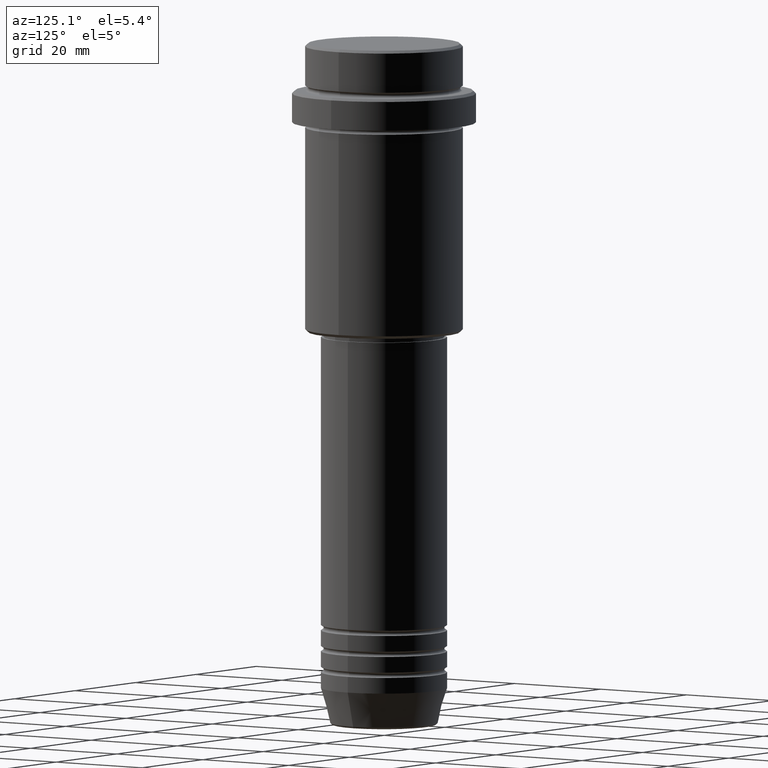
[diagram: clean part render]
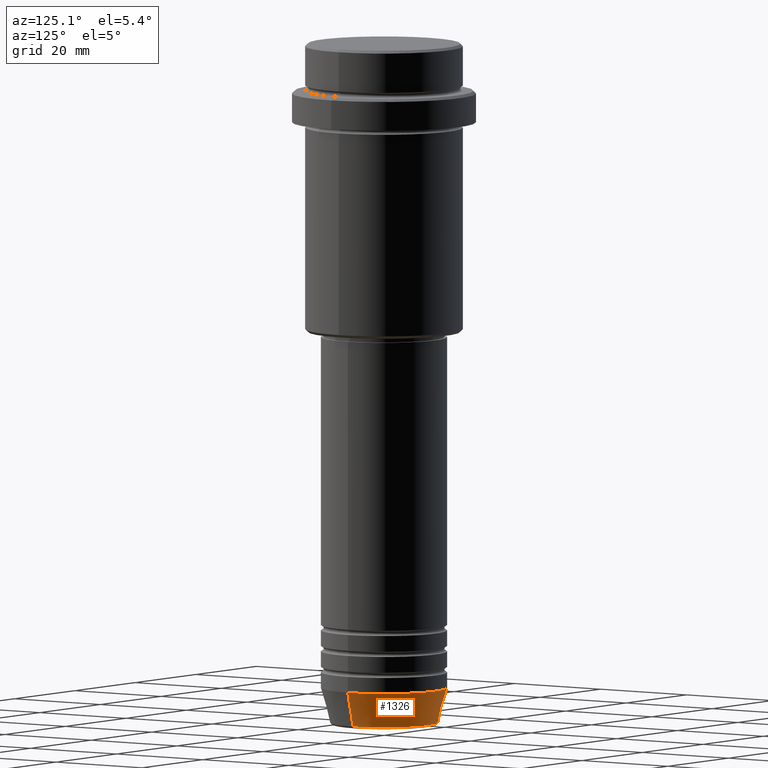
[diagram: same view with one face highlighted and labeled with its STEP entity id]
A machine part, auxiliary view. The second image highlights one B-rep face of the part: STEP entity #1326.
In plain terms, the highlighted conical surface has half-angle 15 deg.
Its self-contained STEP definition (entity closure, byte-faithful):
#23 = ORIENTED_EDGE ( 'NONE', *, *, #299, .T. ) ;
#51 = VERTEX_POINT ( 'NONE', #957 ) ;
#154 = CARTESIAN_POINT ( 'NONE',  ( 0.000000000000000000, 0.000000000000000000, -129.6294095225512422 ) ) ;
#167 = CONICAL_SURFACE ( 'NONE', #471, 12.00000000000000000, 0.2617993877991500740 ) ;
#178 = ORIENTED_EDGE ( 'NONE', *, *, #466, .F. ) ;
#241 = DIRECTION ( 'NONE',  ( 1.000000000000000000, 0.000000000000000000, 0.000000000000000000 ) ) ;
#299 = EDGE_CURVE ( 'NONE', #884, #51, #437, .T. ) ;
#319 = CARTESIAN_POINT ( 'NONE',  ( 10.22365507213718949, 0.000000000000000000, -129.6294095225512422 ) ) ;
#357 = DIRECTION ( 'NONE',  ( -0.000000000000000000, -0.000000000000000000, 1.000000000000000000 ) ) ;
#364 = FACE_OUTER_BOUND ( 'NONE', #925, .T. ) ;
#437 = CIRCLE ( 'NONE', #1183, 10.22365507213718949 ) ;
#439 = VERTEX_POINT ( 'NONE', #1235 ) ;
#466 = EDGE_CURVE ( 'NONE', #884, #439, #1128, .T. ) ;
#471 = AXIS2_PLACEMENT_3D ( 'NONE', #1332, #475, #810 ) ;
#475 = DIRECTION ( 'NONE',  ( -0.000000000000000000, -0.000000000000000000, 1.000000000000000000 ) ) ;
#503 = DIRECTION ( 'NONE',  ( 0.2588190451025213501, 0.000000000000000000, 0.9659258262890680902 ) ) ;
#540 = AXIS2_PLACEMENT_3D ( 'NONE', #1000, #894, #1343 ) ;
#617 = ORIENTED_EDGE ( 'NONE', *, *, #999, .T. ) ;
#629 = VECTOR ( 'NONE', #503, 1000.000000000000000 ) ;
#633 = CARTESIAN_POINT ( 'NONE',  ( -12.00000000000000000, 1.469576158976823947E-15, -123.0000000000000000 ) ) ;
#784 = CIRCLE ( 'NONE', #540, 12.00000000000000000 ) ;
#810 = DIRECTION ( 'NONE',  ( 1.000000000000000000, 0.000000000000000000, 0.000000000000000000 ) ) ;
#820 = CARTESIAN_POINT ( 'NONE',  ( 12.00000000000000000, 0.000000000000000000, -123.0000000000000000 ) ) ;
#884 = VERTEX_POINT ( 'NONE', #319 ) ;
#894 = DIRECTION ( 'NONE',  ( -0.000000000000000000, -0.000000000000000000, 1.000000000000000000 ) ) ;
#921 = DIRECTION ( 'NONE',  ( -0.2588190451025213501, 3.169619151431772337E-17, 0.9659258262890680902 ) ) ;
#925 = EDGE_LOOP ( 'NONE', ( #23, #617, #1119, #178 ) ) ;
#957 = CARTESIAN_POINT ( 'NONE',  ( -10.22365507213718949, 1.360806402472382744E-15, -129.6294095225512422 ) ) ;
#999 = EDGE_CURVE ( 'NONE', #51, #1181, #1309, .T. ) ;
#1000 = CARTESIAN_POINT ( 'NONE',  ( 0.000000000000000000, 0.000000000000000000, -123.0000000000000000 ) ) ;
#1065 = CARTESIAN_POINT ( 'NONE',  ( -12.00000000000000000, 1.469576158976823947E-15, -123.0000000000000000 ) ) ;
#1099 = EDGE_CURVE ( 'NONE', #439, #1181, #784, .T. ) ;
#1119 = ORIENTED_EDGE ( 'NONE', *, *, #1099, .F. ) ;
#1121 = VECTOR ( 'NONE', #921, 1000.000000000000000 ) ;
#1128 = LINE ( 'NONE', #820, #629 ) ;
#1181 = VERTEX_POINT ( 'NONE', #1065 ) ;
#1183 = AXIS2_PLACEMENT_3D ( 'NONE', #154, #357, #241 ) ;
#1235 = CARTESIAN_POINT ( 'NONE',  ( 12.00000000000000000, 0.000000000000000000, -123.0000000000000000 ) ) ;
#1309 = LINE ( 'NONE', #633, #1121 ) ;
#1326 = ADVANCED_FACE ( 'NONE', ( #364 ), #167, .T. ) ;
#1332 = CARTESIAN_POINT ( 'NONE',  ( 0.000000000000000000, 0.000000000000000000, -123.0000000000000000 ) ) ;
#1343 = DIRECTION ( 'NONE',  ( 1.000000000000000000, 0.000000000000000000, 0.000000000000000000 ) ) ;